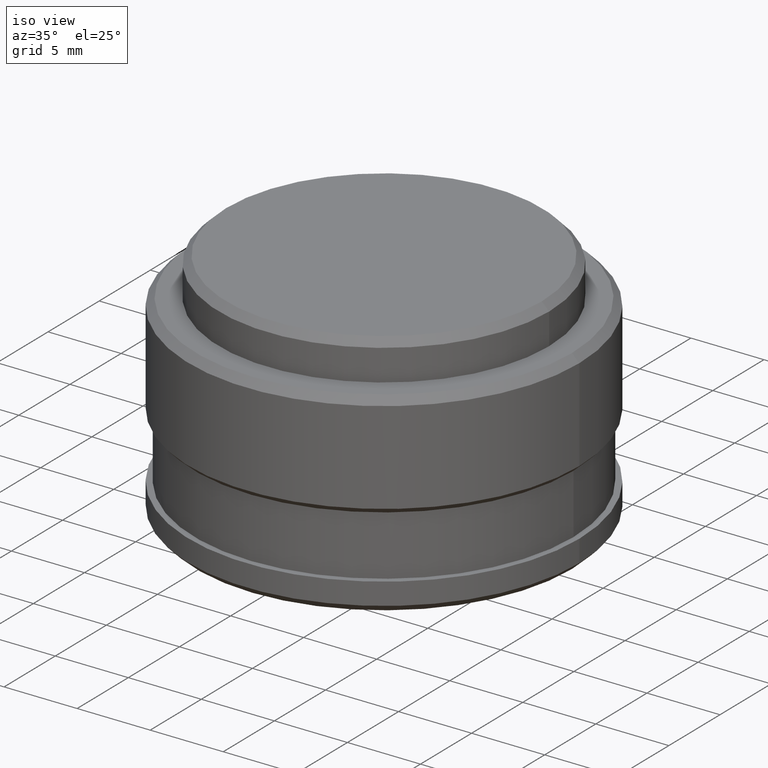
[diagram: clean part render]
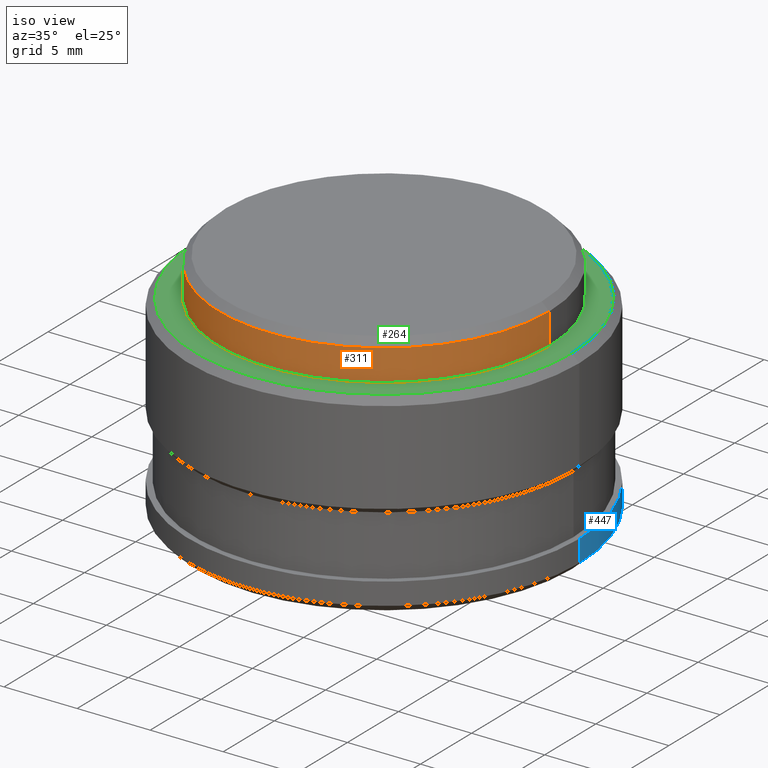
[diagram: same view with three faces highlighted in distinct colors, each labeled with its STEP entity id]
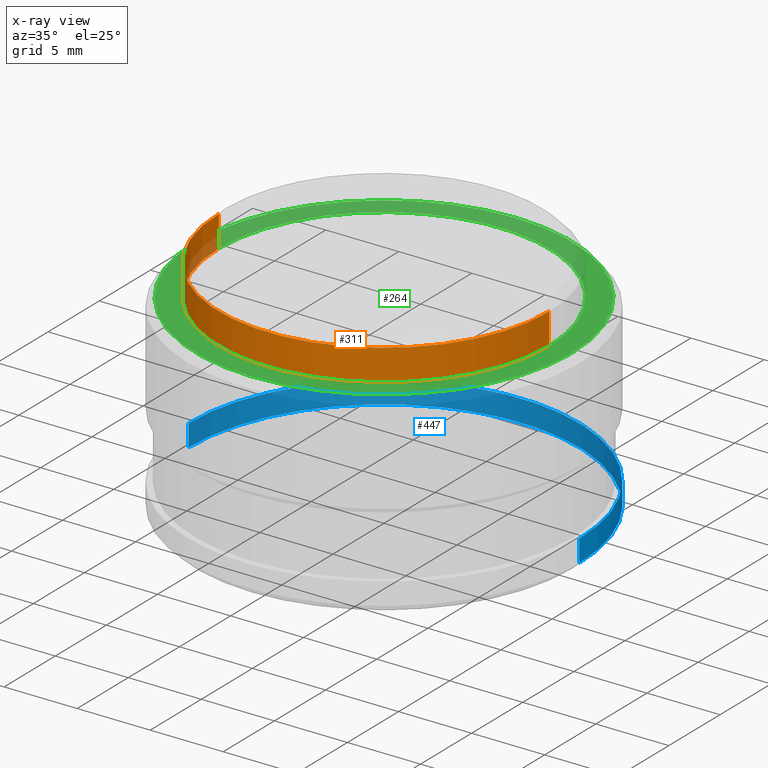
[diagram: x-ray of the same camera — body ghosted, the three highlighted faces saturated]
A machine part, iso view with three faces highlighted in distinct colors.
The next image is the same camera in x-ray (body ghosted, the three faces saturated) — at least one of them is partly hidden behind the body in this view.
Their STEP definitions:

[orange] entity #311 — the highlighted cylindrical surface (partial cylindrical patch) has radius 11.3 mm, axis along (-0, -0, -1).
#19 = CARTESIAN_POINT ( 'NONE',  ( 0.0000000000000000000, 0.0000000000000000000, 13.36000000000000100 ) ) ;
#43 = CYLINDRICAL_SURFACE ( 'NONE', #44, 11.30000000000000100 ) ;
#44 = AXIS2_PLACEMENT_3D ( 'NONE', #69, #425, #115 ) ;
#51 = EDGE_CURVE ( 'NONE', #268, #87, #469, .T. ) ;
#63 = VECTOR ( 'NONE', #562, 1000.000000000000000 ) ;
#69 = CARTESIAN_POINT ( 'NONE',  ( 0.0000000000000000000, 0.0000000000000000000, 16.00000000000000000 ) ) ;
#87 = VERTEX_POINT ( 'NONE', #411 ) ;
#108 = ORIENTED_EDGE ( 'NONE', *, *, #579, .F. ) ;
#115 = DIRECTION ( 'NONE',  ( -1.000000000000000000, 0.0000000000000000000, 0.0000000000000000000 ) ) ;
#145 = CIRCLE ( 'NONE', #423, 11.30000000000000100 ) ;
#167 = DIRECTION ( 'NONE',  ( 1.000000000000000000, 0.0000000000000000000, 0.0000000000000000000 ) ) ;
#191 = DIRECTION ( 'NONE',  ( -0.0000000000000000000, -0.0000000000000000000, -1.000000000000000000 ) ) ;
#205 = CARTESIAN_POINT ( 'NONE',  ( 11.30000000000000100, 1.383850883036509300E-015, 16.00000000000000000 ) ) ;
#224 = ORIENTED_EDGE ( 'NONE', *, *, #360, .T. ) ;
#250 = DIRECTION ( 'NONE',  ( 1.000000000000000000, 0.0000000000000000000, 0.0000000000000000000 ) ) ;
#253 = VERTEX_POINT ( 'NONE', #493 ) ;
#268 = VERTEX_POINT ( 'NONE', #533 ) ;
#290 = CARTESIAN_POINT ( 'NONE',  ( 11.30000000000000100, 1.383850883036509300E-015, 13.36000000000000100 ) ) ;
#292 = FACE_OUTER_BOUND ( 'NONE', #310, .T. ) ;
#302 = CARTESIAN_POINT ( 'NONE',  ( 0.0000000000000000000, 0.0000000000000000000, 15.49999999999999100 ) ) ;
#310 = EDGE_LOOP ( 'NONE', ( #108, #224, #517, #481 ) ) ;
#311 = ADVANCED_FACE ( 'NONE', ( #292 ), #43, .T. ) ;
#313 = VERTEX_POINT ( 'NONE', #290 ) ;
#332 = AXIS2_PLACEMENT_3D ( 'NONE', #302, #489, #167 ) ;
#343 = VECTOR ( 'NONE', #191, 1000.000000000000000 ) ;
#360 = EDGE_CURVE ( 'NONE', #253, #268, #494, .T. ) ;
#387 = EDGE_CURVE ( 'NONE', #87, #313, #145, .T. ) ;
#411 = CARTESIAN_POINT ( 'NONE',  ( -11.30000000000000100, 0.0000000000000000000, 13.36000000000000100 ) ) ;
#423 = AXIS2_PLACEMENT_3D ( 'NONE', #19, #574, #250 ) ;
#425 = DIRECTION ( 'NONE',  ( -0.0000000000000000000, -0.0000000000000000000, -1.000000000000000000 ) ) ;
#469 = LINE ( 'NONE', #511, #343 ) ;
#481 = ORIENTED_EDGE ( 'NONE', *, *, #387, .T. ) ;
#487 = LINE ( 'NONE', #205, #63 ) ;
#489 = DIRECTION ( 'NONE',  ( 0.0000000000000000000, 0.0000000000000000000, -1.000000000000000000 ) ) ;
#493 = CARTESIAN_POINT ( 'NONE',  ( 11.30000000000000100, 1.383850883036509300E-015, 15.49999999999999100 ) ) ;
#494 = CIRCLE ( 'NONE', #332, 11.30000000000000100 ) ;
#511 = CARTESIAN_POINT ( 'NONE',  ( -11.30000000000000100, 0.0000000000000000000, 16.00000000000000000 ) ) ;
#517 = ORIENTED_EDGE ( 'NONE', *, *, #51, .T. ) ;
#533 = CARTESIAN_POINT ( 'NONE',  ( -11.30000000000000100, 0.0000000000000000000, 15.49999999999999100 ) ) ;
#562 = DIRECTION ( 'NONE',  ( -0.0000000000000000000, -0.0000000000000000000, -1.000000000000000000 ) ) ;
#574 = DIRECTION ( 'NONE',  ( 0.0000000000000000000, 0.0000000000000000000, 1.000000000000000000 ) ) ;
#579 = EDGE_CURVE ( 'NONE', #253, #313, #487, .T. ) ;

[blue] entity #447 — the highlighted cylindrical surface (partial cylindrical patch) has radius 13.37 mm, axis along (-0, -0, -1).
#6 = ORIENTED_EDGE ( 'NONE', *, *, #90, .F. ) ;
#13 = DIRECTION ( 'NONE',  ( 1.000000000000000000, 0.0000000000000000000, 0.0000000000000000000 ) ) ;
#29 = CARTESIAN_POINT ( 'NONE',  ( 13.37000000000000100, 1.637352770460011400E-015, 2.000000000000000000 ) ) ;
#46 = AXIS2_PLACEMENT_3D ( 'NONE', #58, #320, #13 ) ;
#58 = CARTESIAN_POINT ( 'NONE',  ( 0.0000000000000000000, 0.0000000000000000000, 2.000000000000000000 ) ) ;
#84 = AXIS2_PLACEMENT_3D ( 'NONE', #333, #155, #565 ) ;
#86 = LINE ( 'NONE', #538, #203 ) ;
#90 = EDGE_CURVE ( 'NONE', #347, #503, #438, .T. ) ;
#143 = AXIS2_PLACEMENT_3D ( 'NONE', #474, #521, #246 ) ;
#146 = EDGE_CURVE ( 'NONE', #347, #491, #185, .T. ) ;
#155 = DIRECTION ( 'NONE',  ( -0.0000000000000000000, -0.0000000000000000000, -1.000000000000000000 ) ) ;
#157 = FACE_OUTER_BOUND ( 'NONE', #501, .T. ) ;
#165 = CIRCLE ( 'NONE', #143, 13.37000000000000100 ) ;
#180 = CYLINDRICAL_SURFACE ( 'NONE', #84, 13.37000000000000100 ) ;
#182 = ORIENTED_EDGE ( 'NONE', *, *, #235, .F. ) ;
#185 = LINE ( 'NONE', #550, #288 ) ;
#203 = VECTOR ( 'NONE', #261, 1000.000000000000000 ) ;
#235 = EDGE_CURVE ( 'NONE', #503, #556, #86, .T. ) ;
#246 = DIRECTION ( 'NONE',  ( 1.000000000000000000, 0.0000000000000000000, 0.0000000000000000000 ) ) ;
#252 = ORIENTED_EDGE ( 'NONE', *, *, #146, .T. ) ;
#261 = DIRECTION ( 'NONE',  ( -0.0000000000000000000, -0.0000000000000000000, -1.000000000000000000 ) ) ;
#288 = VECTOR ( 'NONE', #459, 1000.000000000000000 ) ;
#308 = ORIENTED_EDGE ( 'NONE', *, *, #486, .T. ) ;
#320 = DIRECTION ( 'NONE',  ( 0.0000000000000000000, 0.0000000000000000000, 1.000000000000000000 ) ) ;
#333 = CARTESIAN_POINT ( 'NONE',  ( 0.0000000000000000000, 0.0000000000000000000, 2.000000000000000000 ) ) ;
#347 = VERTEX_POINT ( 'NONE', #29 ) ;
#368 = CARTESIAN_POINT ( 'NONE',  ( -13.37000000000000100, 0.0000000000000000000, 0.5000000000000038900 ) ) ;
#438 = CIRCLE ( 'NONE', #46, 13.37000000000000100 ) ;
#447 = ADVANCED_FACE ( 'NONE', ( #157 ), #180, .T. ) ;
#459 = DIRECTION ( 'NONE',  ( -0.0000000000000000000, -0.0000000000000000000, -1.000000000000000000 ) ) ;
#465 = CARTESIAN_POINT ( 'NONE',  ( 13.37000000000000100, 1.637352770460011400E-015, 0.5000000000000038900 ) ) ;
#474 = CARTESIAN_POINT ( 'NONE',  ( 0.0000000000000000000, 0.0000000000000000000, 0.5000000000000038900 ) ) ;
#478 = CARTESIAN_POINT ( 'NONE',  ( -13.37000000000000100, 0.0000000000000000000, 2.000000000000000000 ) ) ;
#486 = EDGE_CURVE ( 'NONE', #491, #556, #165, .T. ) ;
#491 = VERTEX_POINT ( 'NONE', #465 ) ;
#501 = EDGE_LOOP ( 'NONE', ( #6, #252, #308, #182 ) ) ;
#503 = VERTEX_POINT ( 'NONE', #478 ) ;
#521 = DIRECTION ( 'NONE',  ( -0.0000000000000000000, -0.0000000000000000000, 1.000000000000000000 ) ) ;
#538 = CARTESIAN_POINT ( 'NONE',  ( -13.37000000000000100, 0.0000000000000000000, 2.000000000000000000 ) ) ;
#550 = CARTESIAN_POINT ( 'NONE',  ( 13.37000000000000100, 1.637352770460011400E-015, 2.000000000000000000 ) ) ;
#556 = VERTEX_POINT ( 'NONE', #368 ) ;
#565 = DIRECTION ( 'NONE',  ( -1.000000000000000000, 0.0000000000000000000, 0.0000000000000000000 ) ) ;

[green] entity #264 — the highlighted planar face has unit normal (0, 0, 1).
#19 = CARTESIAN_POINT ( 'NONE',  ( 0.0000000000000000000, 0.0000000000000000000, 13.36000000000000100 ) ) ;
#24 = EDGE_CURVE ( 'NONE', #313, #87, #125, .T. ) ;
#40 = CARTESIAN_POINT ( 'NONE',  ( 0.0000000000000000000, 0.0000000000000000000, 13.36000000000000100 ) ) ;
#59 = EDGE_CURVE ( 'NONE', #513, #245, #228, .T. ) ;
#61 = DIRECTION ( 'NONE',  ( 0.0000000000000000000, 0.0000000000000000000, 1.000000000000000000 ) ) ;
#77 = EDGE_LOOP ( 'NONE', ( #150, #497 ) ) ;
#87 = VERTEX_POINT ( 'NONE', #411 ) ;
#104 = CARTESIAN_POINT ( 'NONE',  ( 0.0000000000000000000, 0.0000000000000000000, 13.36000000000000100 ) ) ;
#105 = FACE_OUTER_BOUND ( 'NONE', #257, .T. ) ;
#125 = CIRCLE ( 'NONE', #445, 11.30000000000000100 ) ;
#145 = CIRCLE ( 'NONE', #423, 11.30000000000000100 ) ;
#147 = DIRECTION ( 'NONE',  ( 1.000000000000000000, 0.0000000000000000000, 0.0000000000000000000 ) ) ;
#150 = ORIENTED_EDGE ( 'NONE', *, *, #387, .F. ) ;
#174 = DIRECTION ( 'NONE',  ( 1.000000000000000000, 0.0000000000000000000, -0.0000000000000000000 ) ) ;
#194 = CARTESIAN_POINT ( 'NONE',  ( 0.0000000000000000000, 0.0000000000000000000, 13.36000000000000100 ) ) ;
#217 = ORIENTED_EDGE ( 'NONE', *, *, #265, .T. ) ;
#220 = CARTESIAN_POINT ( 'NONE',  ( -12.87000000000000300, 0.0000000000000000000, 13.36000000000000100 ) ) ;
#228 = CIRCLE ( 'NONE', #571, 12.87000000000000300 ) ;
#245 = VERTEX_POINT ( 'NONE', #220 ) ;
#250 = DIRECTION ( 'NONE',  ( 1.000000000000000000, 0.0000000000000000000, 0.0000000000000000000 ) ) ;
#257 = EDGE_LOOP ( 'NONE', ( #217, #437 ) ) ;
#264 = ADVANCED_FACE ( 'NONE', ( #105, #307 ), #444, .T. ) ;
#265 = EDGE_CURVE ( 'NONE', #245, #513, #536, .T. ) ;
#290 = CARTESIAN_POINT ( 'NONE',  ( 11.30000000000000100, 1.383850883036509300E-015, 13.36000000000000100 ) ) ;
#306 = DIRECTION ( 'NONE',  ( 0.0000000000000000000, 0.0000000000000000000, 1.000000000000000000 ) ) ;
#307 = FACE_BOUND ( 'NONE', #77, .T. ) ;
#313 = VERTEX_POINT ( 'NONE', #290 ) ;
#321 = DIRECTION ( 'NONE',  ( 1.000000000000000000, 0.0000000000000000000, 0.0000000000000000000 ) ) ;
#387 = EDGE_CURVE ( 'NONE', #87, #313, #145, .T. ) ;
#411 = CARTESIAN_POINT ( 'NONE',  ( -11.30000000000000100, 0.0000000000000000000, 13.36000000000000100 ) ) ;
#423 = AXIS2_PLACEMENT_3D ( 'NONE', #19, #574, #250 ) ;
#430 = CARTESIAN_POINT ( 'NONE',  ( 12.87000000000000300, 1.606736600481327600E-015, 13.36000000000000100 ) ) ;
#437 = ORIENTED_EDGE ( 'NONE', *, *, #59, .T. ) ;
#443 = AXIS2_PLACEMENT_3D ( 'NONE', #40, #306, #582 ) ;
#444 = PLANE ( 'NONE',  #475 ) ;
#445 = AXIS2_PLACEMENT_3D ( 'NONE', #194, #467, #147 ) ;
#467 = DIRECTION ( 'NONE',  ( 0.0000000000000000000, 0.0000000000000000000, 1.000000000000000000 ) ) ;
#475 = AXIS2_PLACEMENT_3D ( 'NONE', #584, #492, #174 ) ;
#492 = DIRECTION ( 'NONE',  ( 0.0000000000000000000, 0.0000000000000000000, 1.000000000000000000 ) ) ;
#497 = ORIENTED_EDGE ( 'NONE', *, *, #24, .F. ) ;
#513 = VERTEX_POINT ( 'NONE', #430 ) ;
#536 = CIRCLE ( 'NONE', #443, 12.87000000000000300 ) ;
#571 = AXIS2_PLACEMENT_3D ( 'NONE', #104, #61, #321 ) ;
#574 = DIRECTION ( 'NONE',  ( 0.0000000000000000000, 0.0000000000000000000, 1.000000000000000000 ) ) ;
#582 = DIRECTION ( 'NONE',  ( 1.000000000000000000, 0.0000000000000000000, 0.0000000000000000000 ) ) ;
#584 = CARTESIAN_POINT ( 'NONE',  ( 0.0000000000000000000, 0.0000000000000000000, 13.36000000000000100 ) ) ;